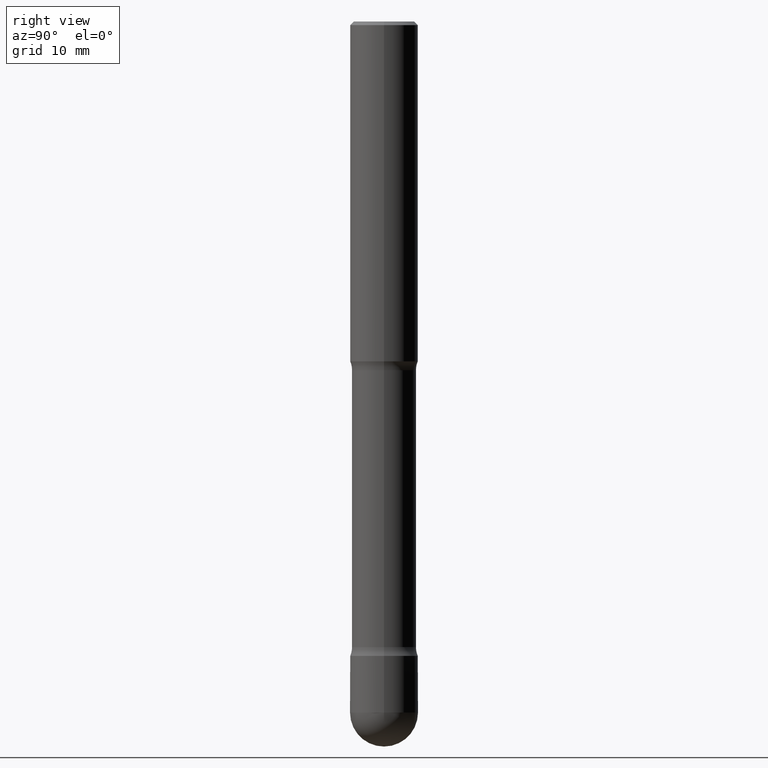
[diagram: clean part render]
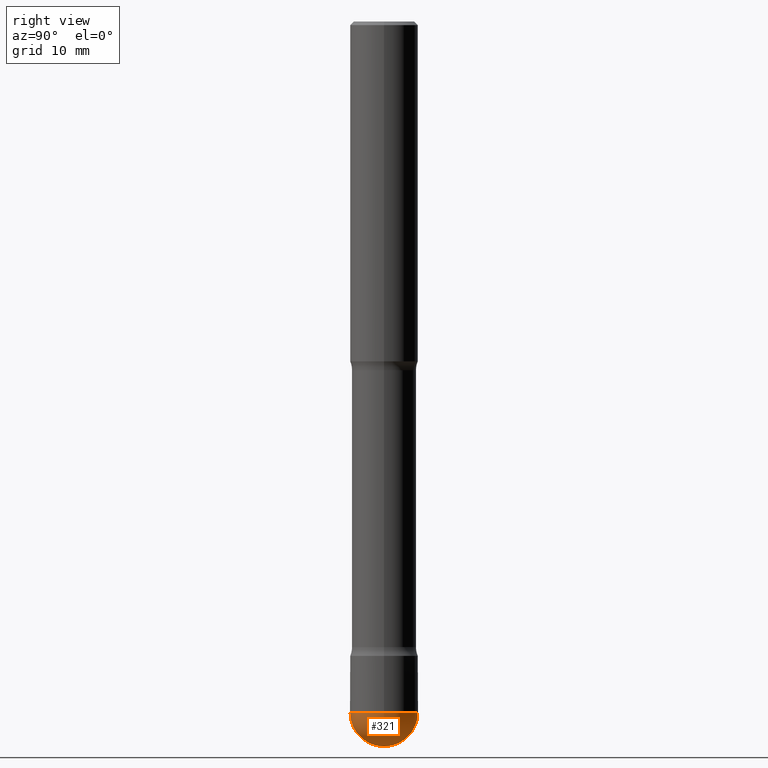
[diagram: same view with one face highlighted and labeled with its STEP entity id]
A machine part, right view. The second image highlights one B-rep face of the part: STEP entity #321.
In plain terms, the highlighted spherical surface has radius 4.7625 mm.
Its self-contained STEP definition (entity closure, byte-faithful):
#30 = CIRCLE ( 'NONE', #39, 0.1874999999999996669 ) ;
#39 = AXIS2_PLACEMENT_3D ( 'NONE', #241, #452, #443 ) ;
#45 = ORIENTED_EDGE ( 'NONE', *, *, #404, .F. ) ;
#61 = AXIS2_PLACEMENT_3D ( 'NONE', #537, #530, #366 ) ;
#83 = DIRECTION ( 'NONE',  ( 1.000000000000000000, -6.982962677686265133E-15, 0.000000000000000000 ) ) ;
#101 = DIRECTION ( 'NONE',  ( 1.000000000000000000, -6.982962677686265922E-15, 4.883557194083112340E-29 ) ) ;
#106 = CIRCLE ( 'NONE', #505, 0.1874999999999998335 ) ;
#129 = SPHERICAL_SURFACE ( 'NONE', #294, 0.1874999999999998335 ) ;
#165 = DIRECTION ( 'NONE',  ( -1.000000000000000000, 6.982962677686265922E-15, -4.883557194083112901E-29 ) ) ;
#167 = CARTESIAN_POINT ( 'NONE',  ( 9.392832084576658456E-29, -1.321177005190876857E-14, -3.812500000000000000 ) ) ;
#175 = VERTEX_POINT ( 'NONE', #196 ) ;
#196 = CARTESIAN_POINT ( 'NONE',  ( 9.859374669697428406E-29, -1.385494173919985124E-14, -4.000000000000000000 ) ) ;
#211 = CARTESIAN_POINT ( 'NONE',  ( 1.309305502066266713E-15, 0.1874999999999864830, -3.812500000000000444 ) ) ;
#220 = CARTESIAN_POINT ( 'NONE',  ( 0.1874999999999996669, -1.407503414721142196E-14, -3.812500000000000000 ) ) ;
#226 = ORIENTED_EDGE ( 'NONE', *, *, #524, .F. ) ;
#235 = CIRCLE ( 'NONE', #61, 0.1874999999999998335 ) ;
#241 = CARTESIAN_POINT ( 'NONE',  ( 9.323349823580833275E-29, -1.331127260433949088E-14, -3.812500000000000000 ) ) ;
#256 = CARTESIAN_POINT ( 'NONE',  ( 9.323349823580833275E-29, -1.331127260433949088E-14, -3.812500000000000000 ) ) ;
#262 = AXIS2_PLACEMENT_3D ( 'NONE', #256, #551, #83 ) ;
#275 = CARTESIAN_POINT ( 'NONE',  ( -1.332267629550092396E-15, -0.1875000000000130174, -3.812499999999999112 ) ) ;
#294 = AXIS2_PLACEMENT_3D ( 'NONE', #167, #165, #339 ) ;
#295 = EDGE_CURVE ( 'NONE', #559, #346, #503, .T. ) ;
#304 = FACE_OUTER_BOUND ( 'NONE', #424, .T. ) ;
#313 = VERTEX_POINT ( 'NONE', #211 ) ;
#321 = ADVANCED_FACE ( 'NONE', ( #304 ), #129, .T. ) ;
#339 = DIRECTION ( 'NONE',  ( 6.982962677686265922E-15, 1.000000000000000000, -2.913971193241883133E-15 ) ) ;
#340 = ORIENTED_EDGE ( 'NONE', *, *, #295, .F. ) ;
#346 = VERTEX_POINT ( 'NONE', #220 ) ;
#366 = DIRECTION ( 'NONE',  ( -7.105427357601001070E-15, -1.000000000000000000, 0.000000000000000000 ) ) ;
#404 = EDGE_CURVE ( 'NONE', #346, #313, #30, .T. ) ;
#424 = EDGE_LOOP ( 'NONE', ( #226, #429, #45, #340 ) ) ;
#429 = ORIENTED_EDGE ( 'NONE', *, *, #547, .T. ) ;
#439 = DIRECTION ( 'NONE',  ( 6.982962677686266711E-15, 1.000000000000000000, 0.000000000000000000 ) ) ;
#443 = DIRECTION ( 'NONE',  ( 1.000000000000000000, -6.982962677686265133E-15, 0.000000000000000000 ) ) ;
#452 = DIRECTION ( 'NONE',  ( -2.445468806185136597E-29, 3.491481338843145583E-15, 1.000000000000000000 ) ) ;
#498 = CARTESIAN_POINT ( 'NONE',  ( 9.392832084576658456E-29, -1.321177005190876857E-14, -3.812500000000000000 ) ) ;
#503 = CIRCLE ( 'NONE', #262, 0.1874999999999996669 ) ;
#505 = AXIS2_PLACEMENT_3D ( 'NONE', #498, #101, #439 ) ;
#524 = EDGE_CURVE ( 'NONE', #175, #559, #235, .T. ) ;
#530 = DIRECTION ( 'NONE',  ( -1.000000000000000000, 7.105427357601001070E-15, -4.926315508542082329E-29 ) ) ;
#537 = CARTESIAN_POINT ( 'NONE',  ( 9.392832084576658456E-29, -1.321177005190876857E-14, -3.812500000000000000 ) ) ;
#547 = EDGE_CURVE ( 'NONE', #175, #313, #106, .T. ) ;
#551 = DIRECTION ( 'NONE',  ( -2.445468806185136597E-29, 3.491481338843145583E-15, 1.000000000000000000 ) ) ;
#559 = VERTEX_POINT ( 'NONE', #275 ) ;